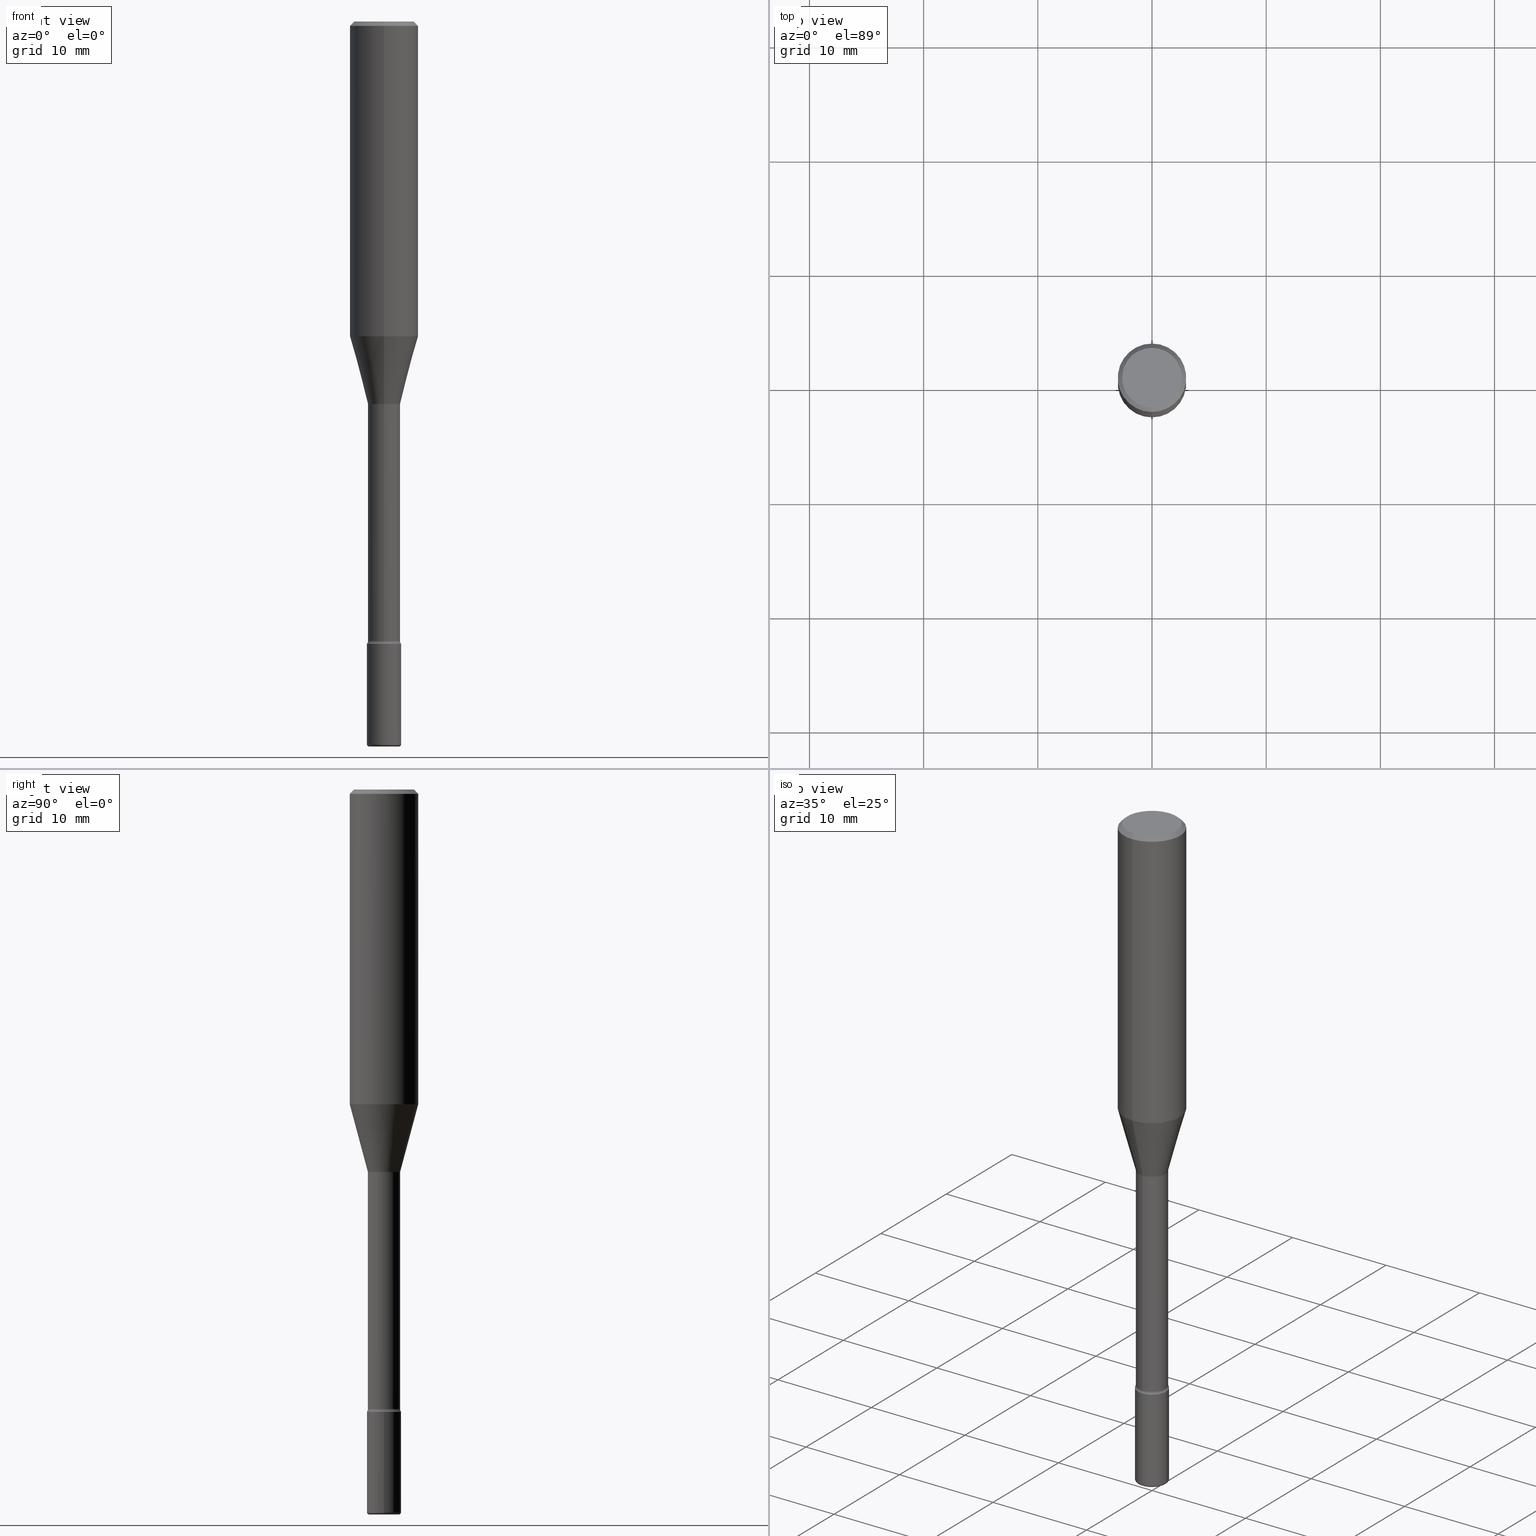
[diagram: canonical four-view strip — front | top / right | iso, engineering-drawing reading convention]
A machine part, canonical four-view strip (front | top / right | iso — engineering-drawing reading convention). The complete STEP part file that produces these views, byte-faithful:
ISO-10303-21;
HEADER;
FILE_DESCRIPTION (( 'STEP AP203' ),
    '1' );
FILE_NAME ('05367.STEP',
    '2024-03-06T20:02:08',
    ( '' ),
    ( '' ),
    'SwSTEP 2.0',
    'SolidWorks 2023',
    '' );
FILE_SCHEMA (( 'CONFIG_CONTROL_DESIGN' ));
ENDSEC;

DATA;
#1 = VECTOR ( 'NONE', #241, 39.37007874015748143 ) ;
#2 = VECTOR ( 'NONE', #45, 39.37007874015748143 ) ;
#3 = APPROVAL ( #486, 'UNSPECIFIED' ) ;
#4 = LINE ( 'NONE', #530, #2 ) ;
#5 = ORIENTED_EDGE ( 'NONE', *, *, #226, .F. ) ;
#6 = CARTESIAN_POINT ( 'NONE',  ( 3.220460959417665931E-29, -4.598545625197397204E-15, -1.316992501787273007 ) ) ;
#7 = VERTEX_POINT ( 'NONE', #312 ) ;
#8 = DIRECTION ( 'NONE',  ( -2.445314574720221452E-29, 3.491702207079214016E-15, 1.000000000000000000 ) ) ;
#9 = DATE_TIME_ROLE ( 'classification_date' ) ;
#10 = CARTESIAN_POINT ( 'NONE',  ( 0.05905000000000005383, -9.113464590648378529E-15, -2.492100000000000648 ) ) ;
#11 = AXIS2_PLACEMENT_3D ( 'NONE', #288, #198, #367 ) ;
#12 = COORDINATED_UNIVERSAL_TIME_OFFSET ( 5, 0, .BEHIND. ) ;
#13 = EDGE_CURVE ( 'NONE', #376, #202, #94, .T. ) ;
#14 = FACE_OUTER_BOUND ( 'NONE', #568, .T. ) ;
#15 = LINE ( 'NONE', #239, #95 ) ;
#16 = CARTESIAN_POINT ( 'NONE',  ( -0.05114999999999999408, -8.337678035189711370E-15, -2.492099999999999760 ) ) ;
#17 = COORDINATED_UNIVERSAL_TIME_OFFSET ( 5, 0, .BEHIND. ) ;
#18 = DIRECTION ( 'NONE',  ( -1.000000000000000000, 6.982962677686265922E-15, -4.883557194083112340E-29 ) ) ;
#19 = CARTESIAN_POINT ( 'NONE',  ( 4.123439461174264426E-16, 0.05904999999999250432, -2.145700000000000163 ) ) ;
#20 = PERSON_AND_ORGANIZATION ( #254, #103 ) ;
#21 = EDGE_CURVE ( 'NONE', #265, #319, #160, .T. ) ;
#22 = CARTESIAN_POINT ( 'NONE',  ( -7.587710785535310407E-16, -0.1031000000000000111, 3.312380692850428747E-16 ) ) ;
#23 = CONICAL_SURFACE ( 'NONE', #357, 0.1180999999999999966, 0.7853981633974480570 ) ;
#24 = CARTESIAN_POINT ( 'NONE',  ( -0.05904999999999999832, -7.676820591177032402E-15, -2.145700000000000163 ) ) ;
#25 = CARTESIAN_POINT ( 'NONE',  ( -8.246878922347212441E-16, -0.1181000000000037714, -1.085273619446188276 ) ) ;
#26 = EDGE_CURVE ( 'NONE', #72, #250, #141, .T. ) ;
#27 = ADVANCED_FACE ( 'NONE', ( #479 ), #405, .T. ) ;
#28 = VERTEX_POINT ( 'NONE', #482 ) ;
#29 = AXIS2_PLACEMENT_3D ( 'NONE', #56, #407, #408 ) ;
#30 = CIRCLE ( 'NONE', #351, 0.007900000000000104855 ) ;
#31 = CYLINDRICAL_SURFACE ( 'NONE', #455, 0.05904999999999999832 ) ;
#32 = EDGE_LOOP ( 'NONE', ( #295, #125, #391, #338 ) ) ;
#33 = DIRECTION ( 'NONE',  ( 1.000000000000000000, -7.105427357601001070E-15, 4.926318213397865757E-29 ) ) ;
#34 = ORIENTED_EDGE ( 'NONE', *, *, #26, .F. ) ;
#35 = DIRECTION ( 'NONE',  ( -6.982962677686266711E-15, -1.000000000000000000, 3.491481338843145583E-15 ) ) ;
#36 = APPROVAL ( #279, 'UNSPECIFIED' ) ;
#37 = ORIENTED_EDGE ( 'NONE', *, *, #283, .T. ) ;
#38 =( CONVERSION_BASED_UNIT ( 'INCH', #427 ) LENGTH_UNIT ( ) NAMED_UNIT ( #350 ) );
#39 = DIRECTION ( 'NONE',  ( -2.445314574720221452E-29, 3.491702207079214016E-15, 1.000000000000000000 ) ) ;
#40 = CIRCLE ( 'NONE', #333, 0.05550000000000001460 ) ;
#41 = ORIENTED_EDGE ( 'NONE', *, *, #521, .F. ) ;
#42 = ORIENTED_EDGE ( 'NONE', *, *, #272, .T. ) ;
#43 = ORIENTED_EDGE ( 'NONE', *, *, #371, .T. ) ;
#44 = EDGE_CURVE ( 'NONE', #265, #225, #230, .T. ) ;
#45 = DIRECTION ( 'NONE',  ( -2.445314574720221172E-29, 3.491702207079214016E-15, 1.000000000000000000 ) ) ;
#46 = CARTESIAN_POINT ( 'NONE',  ( 3.667971862080338817E-31, -5.237553310618831452E-17, -0.01500000000000002720 ) ) ;
#47 = PRODUCT_DEFINITION_FORMATION_WITH_SPECIFIED_SOURCE ( 'ANY', '', #193, .NOT_KNOWN. ) ;
#48 = CARTESIAN_POINT ( 'NONE',  ( 0.05114999999999999408, -9.085881888071516406E-15, -2.500000000000000000 ) ) ;
#49 = AXIS2_PLACEMENT_3D ( 'NONE', #507, #119, #291 ) ;
#50 = ORIENTED_EDGE ( 'NONE', *, *, #118, .F. ) ;
#51 = DIRECTION ( 'NONE',  ( 1.000000000000000000, -6.982962677686258822E-15, 0.000000000000000000 ) ) ;
#52 = ORIENTED_EDGE ( 'NONE', *, *, #490, .F. ) ;
#53 = PRODUCT_RELATED_PRODUCT_CATEGORY ( 'detail', '', ( #193 ) ) ;
#54 = VECTOR ( 'NONE', #366, 39.37007874015748143 ) ;
#55 = CIRCLE ( 'NONE', #137, 0.1031000000000000111 ) ;
#56 = CARTESIAN_POINT ( 'NONE',  ( 3.667971862080338817E-31, -5.237553310618831452E-17, -0.01500000000000002720 ) ) ;
#57 = PLANE ( 'NONE',  #425 ) ;
#58 = CARTESIAN_POINT ( 'NONE',  ( 5.247242417431447608E-29, -7.491671508755737816E-15, -2.145700000000000163 ) ) ;
#59 = MECHANICAL_CONTEXT ( 'NONE', #270, 'mechanical' ) ;
#60 = EDGE_CURVE ( 'NONE', #28, #428, #553, .T. ) ;
#61 = DIRECTION ( 'NONE',  ( -2.445314574720221452E-29, 3.491702207079214016E-15, 1.000000000000000000 ) ) ;
#62 = CARTESIAN_POINT ( 'NONE',  ( 3.979828918379874177E-16, 0.05601111260565939248, -1.316992501787273229 ) ) ;
#63 = CARTESIAN_POINT ( 'NONE',  ( 3.667971862080338817E-31, -5.237553310618831452E-17, -0.01500000000000002720 ) ) ;
#64 = AXIS2_PLACEMENT_3D ( 'NONE', #387, #93, #268 ) ;
#65 = CARTESIAN_POINT ( 'NONE',  ( 5.009326287109235352E-16, 0.07049999999999263800, -2.136009927760847305 ) ) ;
#66 = DIRECTION ( 'NONE',  ( -6.982962677686265922E-15, -1.000000000000000000, 3.491702207079214016E-15 ) ) ;
#67 = LINE ( 'NONE', #456, #1 ) ;
#68 = CARTESIAN_POINT ( 'NONE',  ( 6.094352811893979937E-29, -8.701120644531004397E-15, -2.492100000000000648 ) ) ;
#69 = DIRECTION ( 'NONE',  ( -2.445314574720221452E-29, 3.491702207079214016E-15, 1.000000000000000000 ) ) ;
#70 = ORIENTED_EDGE ( 'NONE', *, *, #436, .T. ) ;
#71 = EDGE_CURVE ( 'NONE', #433, #266, #439, .T. ) ;
#72 = VERTEX_POINT ( 'NONE', #227 ) ;
#73 = ORIENTED_EDGE ( 'NONE', *, *, #150, .T. ) ;
#74 = AXIS2_PLACEMENT_3D ( 'NONE', #65, #203, #158 ) ;
#75 = AXIS2_PLACEMENT_3D ( 'NONE', #563, #560, #337 ) ;
#76 = DIRECTION ( 'NONE',  ( 1.000000000000000000, -6.982962677686266711E-15, 4.876176775795936353E-29 ) ) ;
#77 = EDGE_LOOP ( 'NONE', ( #473, #384, #168, #252 ) ) ;
#78 = CARTESIAN_POINT ( 'NONE',  ( 3.667971862080338817E-31, -5.237553310618831452E-17, -0.01500000000000002720 ) ) ;
#79 = EDGE_CURVE ( 'NONE', #220, #422, #218, .T. ) ;
#80 = EDGE_CURVE ( 'NONE', #472, #7, #316, .T. ) ;
#81 = ORIENTED_EDGE ( 'NONE', *, *, #71, .T. ) ;
#82 = ORIENTED_EDGE ( 'NONE', *, *, #26, .T. ) ;
#83 = DIRECTION ( 'NONE',  ( 6.982962677686265922E-15, 1.000000000000000000, -3.487819265831411744E-15 ) ) ;
#84 = CLOSED_SHELL ( 'NONE', ( #400, #358, #159, #127, #483, #210 ) ) ;
#85 = VECTOR ( 'NONE', #256, 39.37007874015748143 ) ;
#86 = CARTESIAN_POINT ( 'NONE',  ( 4.069633519066500838E-16, 0.05549999999999261774, -2.136009927760847749 ) ) ;
#87 = ADVANCED_FACE ( 'NONE', ( #276 ), #487, .T. ) ;
#88 = DIRECTION ( 'NONE',  ( -1.000000000000000000, 6.982962677686265922E-15, -4.883557194083112340E-29 ) ) ;
#89 = MANIFOLD_SOLID_BREP ( 'Body-Move/Copy2[1]', #84 ) ;
#90 = DIRECTION ( 'NONE',  ( -6.982962677686265922E-15, -1.000000000000000000, 3.469747663417777397E-15 ) ) ;
#91 = DIRECTION ( 'NONE',  ( -2.445314574720221452E-29, 3.491702207079214016E-15, 1.000000000000000000 ) ) ;
#92 = DIRECTION ( 'NONE',  ( -6.982962677686270655E-15, -1.000000000000000000, 0.000000000000000000 ) ) ;
#93 = DIRECTION ( 'NONE',  ( -2.445468806185136597E-29, 3.491481338843145583E-15, 1.000000000000000000 ) ) ;
#94 = CIRCLE ( 'NONE', #395, 0.1180999999999999966 ) ;
#95 = VECTOR ( 'NONE', #412, 39.37007874015748143 ) ;
#96 = APPROVAL_DATE_TIME ( #156, #3 ) ;
#97 = APPLICATION_PROTOCOL_DEFINITION ( 'international standard', 'config_control_design', 1994, #286 ) ;
#98 = ADVANCED_FACE ( 'NONE', ( #326 ), #23, .T. ) ;
#99 = PERSON_AND_ORGANIZATION ( #254, #103 ) ;
#100 = CARTESIAN_POINT ( 'NONE',  ( 5.223216208100687058E-29, -7.458310579105662270E-15, -2.136009927760847305 ) ) ;
#101 = FACE_OUTER_BOUND ( 'NONE', #559, .T. ) ;
#102 = LOCAL_TIME ( 15, 2, 8.000000000000000000, #364 ) ;
#103 = ORGANIZATION ( 'UNSPECIFIED', 'UNSPECIFIED', '' ) ;
#104 = AXIS2_PLACEMENT_3D ( 'NONE', #100, #540, #233 ) ;
#105 = AXIS2_PLACEMENT_3D ( 'NONE', #375, #33, #471 ) ;
#106 = CC_DESIGN_PERSON_AND_ORGANIZATION_ASSIGNMENT ( #488, #323, ( #432 ) ) ;
#107 = CARTESIAN_POINT ( 'NONE',  ( -8.102248135368174406E-16, -0.1181000000000000522, -0.01499999999999961607 ) ) ;
#108 = PERSON_AND_ORGANIZATION ( #254, #103 ) ;
#109 = DATE_AND_TIME ( #548, #102 ) ;
#110 = CARTESIAN_POINT ( 'NONE',  ( -8.246878922347479668E-16, -0.1180999999999999966, 8.904434295473012272E-16 ) ) ;
#111 = DIRECTION ( 'NONE',  ( -6.982962677686265922E-15, -1.000000000000000000, 4.877332133888037765E-15 ) ) ;
#112 = DIRECTION ( 'NONE',  ( -6.982962677686265922E-15, -1.000000000000000000, 4.626330217890369336E-15 ) ) ;
#113 = PLANE ( 'NONE',  #11 ) ;
#114 = DIRECTION ( 'NONE',  ( -2.445468806185136597E-29, 3.491481338843145583E-15, 1.000000000000000000 ) ) ;
#115 = CIRCLE ( 'NONE', #248, 0.007900000000000104855 ) ;
#116 = CARTESIAN_POINT ( 'NONE',  ( -1.169113584055446105E-44, 1.669184350826100908E-30, 4.780733988912460139E-16 ) ) ;
#117 = DIRECTION ( 'NONE',  ( -2.445314574720221452E-29, 3.491702207079214016E-15, 1.000000000000000000 ) ) ;
#118 = EDGE_CURVE ( 'NONE', #265, #202, #67, .T. ) ;
#119 = DIRECTION ( 'NONE',  ( -2.445314574720221452E-29, 3.491702207079214016E-15, 1.000000000000000000 ) ) ;
#120 = ORIENTED_EDGE ( 'NONE', *, *, #292, .F. ) ;
#121 = ORIENTED_EDGE ( 'NONE', *, *, #509, .T. ) ;
#122 = CARTESIAN_POINT ( 'NONE',  ( 0.000000000000000000, 0.000000000000000000, 0.000000000000000000 ) ) ;
#123 = DIRECTION ( 'NONE',  ( -2.445468806185136597E-29, 3.491481338843145583E-15, 1.000000000000000000 ) ) ;
#124 = LOCAL_TIME ( 15, 2, 8.000000000000000000, #17 ) ;
#125 = ORIENTED_EDGE ( 'NONE', *, *, #238, .T. ) ;
#126 = AXIS2_PLACEMENT_3D ( 'NONE', #196, #117, #112 ) ;
#127 = ADVANCED_FACE ( 'NONE', ( #409 ), #113, .T. ) ;
#128 = CARTESIAN_POINT ( 'NONE',  ( 5.247242417431447608E-29, -7.491671508755737816E-15, -2.145700000000000163 ) ) ;
#129 = ORIENTED_EDGE ( 'NONE', *, *, #231, .T. ) ;
#130 = ORIENTED_EDGE ( 'NONE', *, *, #420, .T. ) ;
#131 = ORIENTED_EDGE ( 'NONE', *, *, #44, .F. ) ;
#132 = EDGE_LOOP ( 'NONE', ( #460, #129, #121, #263 ) ) ;
#133 = CARTESIAN_POINT ( 'NONE',  ( 8.391509709326781971E-16, 0.1180999999999999966, 6.570336823519088696E-17 ) ) ;
#134 = EDGE_CURVE ( 'NONE', #422, #220, #536, .T. ) ;
#135 = DIRECTION ( 'NONE',  ( 1.000000000000000000, -6.982962677686266711E-15, 4.876176775795936353E-29 ) ) ;
#136 = DIRECTION ( 'NONE',  ( -6.982962677686265922E-15, -1.000000000000000000, 4.877332133888037765E-15 ) ) ;
#137 = AXIS2_PLACEMENT_3D ( 'NONE', #311, #177, #429 ) ;
#138 = CARTESIAN_POINT ( 'NONE',  ( -3.875544286115555499E-16, -0.05550000000000462202, -1.320874787463810707 ) ) ;
#139 = ORIENTED_EDGE ( 'NONE', *, *, #466, .T. ) ;
#140 = FACE_OUTER_BOUND ( 'NONE', #174, .T. ) ;
#141 = LINE ( 'NONE', #304, #394 ) ;
#142 = CARTESIAN_POINT ( 'NONE',  ( 5.247242417431447608E-29, -7.491671508755737816E-15, -2.145700000000000163 ) ) ;
#143 = DIRECTION ( 'NONE',  ( -6.982962677686265922E-15, -1.000000000000000000, 4.922248637232899302E-15 ) ) ;
#144 = APPROVAL_PERSON_ORGANIZATION ( #328, #36, #537 ) ;
#145 = ADVANCED_FACE ( 'NONE', ( #280 ), #566, .F. ) ;
#146 = DIRECTION ( 'NONE',  ( -2.445314574720221172E-29, 3.491702207079214016E-15, 1.000000000000000000 ) ) ;
#147 = TOROIDAL_SURFACE ( 'NONE', #297, 0.07050000000000010425, 0.01500000000000002373 ) ;
#148 = EDGE_LOOP ( 'NONE', ( #130, #73, #480, #342 ) ) ;
#149 = CARTESIAN_POINT ( 'NONE',  ( -8.246878922347475723E-16, -0.1181000000000000522, -0.01499999999999961607 ) ) ;
#150 = EDGE_CURVE ( 'NONE', #28, #72, #115, .T. ) ;
#151 = DIRECTION ( 'NONE',  ( 2.445314574720221172E-29, -3.491702207079214016E-15, -1.000000000000000000 ) ) ;
#152 = DIRECTION ( 'NONE',  ( -2.438088387897960049E-29, 3.491481338843145188E-15, 1.000000000000000000 ) ) ;
#153 = PERSON_AND_ORGANIZATION_ROLE ( 'design_supplier' ) ;
#154 = CIRCLE ( 'NONE', #434, 0.05550000000000001460 ) ;
#155 = AXIS2_PLACEMENT_3D ( 'NONE', #567, #416, #513 ) ;
#156 = DATE_AND_TIME ( #269, #216 ) ;
#157 = CARTESIAN_POINT ( 'NONE',  ( 6.094352811893978816E-29, -8.701120644531002820E-15, -2.492099999999999760 ) ) ;
#158 = DIRECTION ( 'NONE',  ( 7.105427357601001859E-15, 1.000000000000000000, 0.000000000000000000 ) ) ;
#159 = ADVANCED_FACE ( 'NONE', ( #458 ), #441, .T. ) ;
#160 = CIRCLE ( 'NONE', #388, 0.05601111260566399297 ) ;
#161 = FACE_OUTER_BOUND ( 'NONE', #294, .T. ) ;
#162 = CIRCLE ( 'NONE', #341, 0.01500000000000001853 ) ;
#163 = EDGE_LOOP ( 'NONE', ( #347, #430, #41, #50 ) ) ;
#164 = DIRECTION ( 'NONE',  ( -6.982962677686265922E-15, -1.000000000000000000, 3.491702207079214411E-15 ) ) ;
#165 = ORIENTED_EDGE ( 'NONE', *, *, #329, .F. ) ;
#166 = DIRECTION ( 'NONE',  ( -2.445468806185136597E-29, 3.491481338843145583E-15, 1.000000000000000000 ) ) ;
#167 = ADVANCED_FACE ( 'NONE', ( #290 ), #543, .T. ) ;
#168 = ORIENTED_EDGE ( 'NONE', *, *, #570, .T. ) ;
#169 = ORIENTED_EDGE ( 'NONE', *, *, #13, .T. ) ;
#170 = ORIENTED_EDGE ( 'NONE', *, *, #558, .T. ) ;
#171 = TOROIDAL_SURFACE ( 'NONE', #484, 0.07050000000000000711, 0.01500000000000001853 ) ;
#172 = VERTEX_POINT ( 'NONE', #235 ) ;
#173 = ORIENTED_EDGE ( 'NONE', *, *, #226, .T. ) ;
#174 = EDGE_LOOP ( 'NONE', ( #465, #423, #211, #42 ) ) ;
#175 = UNCERTAINTY_MEASURE_WITH_UNIT (LENGTH_MEASURE( 1.000000000000000082E-05 ), #38, 'distance_accuracy_value', 'NONE');
#176 = ORIENTED_EDGE ( 'NONE', *, *, #264, .T. ) ;
#177 = DIRECTION ( 'NONE',  ( -2.445314574720221452E-29, 3.491702207079214016E-15, 1.000000000000000000 ) ) ;
#178 = CARTESIAN_POINT ( 'NONE',  ( 2.653835399191132044E-29, -3.789452292305104081E-15, -1.085273619446188720 ) ) ;
#179 = ADVANCED_FACE ( 'NONE', ( #449 ), #402, .F. ) ;
#180 = CIRCLE ( 'NONE', #74, 0.01500000000000001853 ) ;
#181 = CIRCLE ( 'NONE', #105, 0.01500000000000001159 ) ;
#182 = ORIENTED_EDGE ( 'NONE', *, *, #509, .F. ) ;
#183 = ADVANCED_FACE ( 'NONE', ( #327 ), #502, .T. ) ;
#184 = DIRECTION ( 'NONE',  ( -2.445468806185136597E-29, 3.491481338843145583E-15, 1.000000000000000000 ) ) ;
#185 = ORIENTED_EDGE ( 'NONE', *, *, #150, .F. ) ;
#186 = LOCAL_TIME ( 15, 2, 8.000000000000000000, #495 ) ;
#187 = TOROIDAL_SURFACE ( 'NONE', #49, 0.07050000000000000711, 0.01500000000000001853 ) ;
#188 = DIRECTION ( 'NONE',  ( -2.445314574720221452E-29, 3.491702207079214016E-15, 1.000000000000000000 ) ) ;
#189 = APPROVAL ( #368, 'UNSPECIFIED' ) ;
#190 = DIRECTION ( 'NONE',  ( 1.000000000000000000, -6.982962677686265922E-15, 4.876176775795935793E-29 ) ) ;
#191 = APPROVAL_ROLE ( '' ) ;
#192 = DIRECTION ( 'NONE',  ( -2.445314574720221172E-29, 3.491702207079214016E-15, 1.000000000000000000 ) ) ;
#193 = PRODUCT ( '05367', '05367', '', ( #59 ) ) ;
#194 = DIRECTION ( 'NONE',  ( 6.982962677686265922E-15, 1.000000000000000000, -3.491702207079214016E-15 ) ) ;
#195 = SECURITY_CLASSIFICATION_LEVEL ( 'unclassified' ) ;
#196 = CARTESIAN_POINT ( 'NONE',  ( 5.246911482977179404E-29, -7.492145425729869203E-15, -2.145700000000000163 ) ) ;
#197 = VECTOR ( 'NONE', #401, 39.37007874015748143 ) ;
#198 = DIRECTION ( 'NONE',  ( 2.438088387897960049E-29, -3.491481338843145188E-15, -1.000000000000000000 ) ) ;
#199 = CALENDAR_DATE ( 2024, 6, 3 ) ;
#200 = CARTESIAN_POINT ( 'NONE',  ( -3.911235088610021883E-16, -0.05601111260566859346, -1.316992501787272785 ) ) ;
#201 = EDGE_CURVE ( 'NONE', #472, #72, #306, .T. ) ;
#202 = VERTEX_POINT ( 'NONE', #25 ) ;
#203 = DIRECTION ( 'NONE',  ( 1.000000000000000000, -7.105427357601001070E-15, 4.926318213397865757E-29 ) ) ;
#204 = EDGE_LOOP ( 'NONE', ( #464, #562 ) ) ;
#205 = AXIS2_PLACEMENT_3D ( 'NONE', #475, #346, #66 ) ;
#206 = ORIENTED_EDGE ( 'NONE', *, *, #60, .T. ) ;
#207 = CYLINDRICAL_SURFACE ( 'NONE', #477, 0.05904999999999999832 ) ;
#208 = DIRECTION ( 'NONE',  ( 1.000000000000000000, -6.982962677686153903E-15, 0.000000000000000000 ) ) ;
#209 = CARTESIAN_POINT ( 'NONE',  ( 0.000000000000000000, 0.000000000000000000, 0.000000000000000000 ) ) ;
#210 = ADVANCED_FACE ( 'NONE', ( #461 ), #207, .T. ) ;
#211 = ORIENTED_EDGE ( 'NONE', *, *, #44, .T. ) ;
#212 = DIRECTION ( 'NONE',  ( -2.445468806185136597E-29, 3.491481338843145583E-15, 1.000000000000000000 ) ) ;
#213 = DIRECTION ( 'NONE',  ( 1.000000000000000000, -6.982962677686276966E-15, 4.883557194083116264E-29 ) ) ;
#214 = EDGE_LOOP ( 'NONE', ( #508, #379 ) ) ;
#215 = FACE_OUTER_BOUND ( 'NONE', #293, .T. ) ;
#216 = LOCAL_TIME ( 15, 2, 8.000000000000000000, #12 ) ;
#217 = ORIENTED_EDGE ( 'NONE', *, *, #457, .F. ) ;
#218 = CIRCLE ( 'NONE', #494, 0.05550000000000008399 ) ;
#219 = CARTESIAN_POINT ( 'NONE',  ( 6.113672015462842613E-29, -8.728703347107864943E-15, -2.500000000000000000 ) ) ;
#220 = VERTEX_POINT ( 'NONE', #86 ) ;
#221 = ORIENTED_EDGE ( 'NONE', *, *, #79, .F. ) ;
#222 = APPROVAL_PERSON_ORGANIZATION ( #108, #189, #191 ) ;
#223 = AXIS2_PLACEMENT_3D ( 'NONE', #321, #459, #492 ) ;
#224 = AXIS2_PLACEMENT_3D ( 'NONE', #78, #377, #253 ) ;
#225 = VERTEX_POINT ( 'NONE', #138 ) ;
#226 = EDGE_CURVE ( 'NONE', #72, #472, #440, .T. ) ;
#227 = CARTESIAN_POINT ( 'NONE',  ( -0.05905000000000005383, -8.281545159064664904E-15, -2.492100000000000648 ) ) ;
#228 = DATE_AND_TIME ( #277, #186 ) ;
#229 = EDGE_CURVE ( 'NONE', #319, #376, #505, .T. ) ;
#230 = CIRCLE ( 'NONE', #247, 0.01500000000000001159 ) ;
#231 = EDGE_CURVE ( 'NONE', #336, #314, #404, .T. ) ;
#232 = AXIS2_PLACEMENT_3D ( 'NONE', #68, #242, #410 ) ;
#233 = DIRECTION ( 'NONE',  ( -6.982962677686265922E-15, -1.000000000000000000, 4.922248637232899302E-15 ) ) ;
#234 = PERSON_AND_ORGANIZATION ( #254, #103 ) ;
#235 = CARTESIAN_POINT ( 'NONE',  ( 8.391509709327049197E-16, 0.1180999999999999411, -0.01500000000000044006 ) ) ;
#236 =( GEOMETRIC_REPRESENTATION_CONTEXT ( 3 ) GLOBAL_UNCERTAINTY_ASSIGNED_CONTEXT ( ( #175 ) ) GLOBAL_UNIT_ASSIGNED_CONTEXT ( ( #38, #481, #260 ) ) REPRESENTATION_CONTEXT ( 'NONE', 'WORKASPACE' ) );
#237 = CIRCLE ( 'NONE', #396, 0.05904999999999999832 ) ;
#238 = EDGE_CURVE ( 'NONE', #220, #353, #499, .T. ) ;
#239 = CARTESIAN_POINT ( 'NONE',  ( 8.246878922347483612E-16, 0.1180999999999999411, -0.01500000000000044006 ) ) ;
#240 = DIRECTION ( 'NONE',  ( -2.445314574720221172E-29, 3.491702207079214016E-15, 1.000000000000000000 ) ) ;
#241 = DIRECTION ( 'NONE',  ( -1.807323732225328167E-15, -0.2588190451025179084, 0.9659258262890690894 ) ) ;
#242 = DIRECTION ( 'NONE',  ( -2.445468806185136597E-29, 3.491481338843145583E-15, 1.000000000000000000 ) ) ;
#243 = CARTESIAN_POINT ( 'NONE',  ( 3.943512183469081661E-16, 0.05549999999999540023, -1.320874787463811373 ) ) ;
#244 = ORIENTED_EDGE ( 'NONE', *, *, #490, .T. ) ;
#245 = CC_DESIGN_PERSON_AND_ORGANIZATION_ASSIGNMENT ( #20, #281, ( #47 ) ) ;
#246 = CYLINDRICAL_SURFACE ( 'NONE', #75, 0.1180999999999999966 ) ;
#247 = AXIS2_PLACEMENT_3D ( 'NONE', #345, #88, #92 ) ;
#248 = AXIS2_PLACEMENT_3D ( 'NONE', #16, #275, #547 ) ;
#249 = CONICAL_SURFACE ( 'NONE', #373, 0.05601111260566399297, 0.2617993877991499629 ) ;
#250 = VERTEX_POINT ( 'NONE', #24 ) ;
#251 = DIRECTION ( 'NONE',  ( -2.445468806185136597E-29, 3.491481338843145583E-15, 1.000000000000000000 ) ) ;
#252 = ORIENTED_EDGE ( 'NONE', *, *, #436, .F. ) ;
#253 = DIRECTION ( 'NONE',  ( -6.982962677686265922E-15, -1.000000000000000000, 3.487819265831411744E-15 ) ) ;
#254 = PERSON ( 'UNSPECIFIED', 'UNSPECIFIED', 'UNSPECIFIED', ('UNSPECIFIED'), ('UNSPECIFIED'), ('UNSPECIFIED') ) ;
#255 = ORIENTED_EDGE ( 'NONE', *, *, #229, .F. ) ;
#256 = DIRECTION ( 'NONE',  ( -2.445468806185136877E-29, 3.491481338843145188E-15, 1.000000000000000000 ) ) ;
#257 = EDGE_CURVE ( 'NONE', #266, #433, #526, .T. ) ;
#258 = ORIENTED_EDGE ( 'NONE', *, *, #521, .T. ) ;
#259 = CIRCLE ( 'NONE', #64, 0.05114999999999999408 ) ;
#260 =( NAMED_UNIT ( * ) SI_UNIT ( $, .STERADIAN. ) SOLID_ANGLE_UNIT ( ) );
#261 = ORIENTED_EDGE ( 'NONE', *, *, #496, .T. ) ;
#262 = DIRECTION ( 'NONE',  ( -6.982962677686265922E-15, -1.000000000000000000, 3.491702207079214016E-15 ) ) ;
#263 = ORIENTED_EDGE ( 'NONE', *, *, #378, .F. ) ;
#264 = EDGE_CURVE ( 'NONE', #172, #314, #381, .T. ) ;
#265 = VERTEX_POINT ( 'NONE', #200 ) ;
#266 = VERTEX_POINT ( 'NONE', #551 ) ;
#267 = AXIS2_PLACEMENT_3D ( 'NONE', #19, #240, #285 ) ;
#268 = DIRECTION ( 'NONE',  ( 1.000000000000000000, -6.982962677686258822E-15, 0.000000000000000000 ) ) ;
#269 = CALENDAR_DATE ( 2024, 6, 3 ) ;
#270 = APPLICATION_CONTEXT ( 'configuration controlled 3d designs of mechanical parts and assemblies' ) ;
#271 = DIRECTION ( 'NONE',  ( 6.982962677686265922E-15, 1.000000000000000000, -3.487819265831411744E-15 ) ) ;
#272 = EDGE_CURVE ( 'NONE', #225, #353, #154, .T. ) ;
#273 = ADVANCED_BREP_SHAPE_REPRESENTATION ( '05367', ( #89, #274, #565 ), #236 ) ;
#274 = MANIFOLD_SOLID_BREP ( 'Body-Move/Copy2[2]', #340 ) ;
#275 = DIRECTION ( 'NONE',  ( 7.105427357601001859E-15, 1.000000000000000000, -3.491481338843145583E-15 ) ) ;
#276 = FACE_OUTER_BOUND ( 'NONE', #77, .T. ) ;
#277 = CALENDAR_DATE ( 2024, 6, 3 ) ;
#278 = TOROIDAL_SURFACE ( 'NONE', #325, 0.05114999999999999408, 0.007900000000000104855 ) ;
#279 = APPROVAL_STATUS ( 'not_yet_approved' ) ;
#280 = FACE_OUTER_BOUND ( 'NONE', #514, .T. ) ;
#281 = PERSON_AND_ORGANIZATION_ROLE ( 'creator' ) ;
#282 = DIRECTION ( 'NONE',  ( -2.445468806185136597E-29, 3.491481338843145583E-15, 1.000000000000000000 ) ) ;
#283 = EDGE_CURVE ( 'NONE', #220, #433, #180, .T. ) ;
#284 = CARTESIAN_POINT ( 'NONE',  ( 8.391509709327049197E-16, 0.1180999999999962358, -1.085273619446189164 ) ) ;
#285 = DIRECTION ( 'NONE',  ( -6.982962677686265922E-15, -1.000000000000000000, 3.491702207079214016E-15 ) ) ;
#286 = APPLICATION_CONTEXT ( 'configuration controlled 3d designs of mechanical parts and assemblies' ) ;
#287 = CC_DESIGN_SECURITY_CLASSIFICATION ( #432, ( #47 ) ) ;
#288 = CARTESIAN_POINT ( 'NONE',  ( 3.571785409637135859E-16, 0.05114999999999127189, -2.500000000000000000 ) ) ;
#289 = AXIS2_PLACEMENT_3D ( 'NONE', #446, #544, #451 ) ;
#290 = FACE_OUTER_BOUND ( 'NONE', #382, .T. ) ;
#291 = DIRECTION ( 'NONE',  ( -6.982962677686265922E-15, -1.000000000000000000, 3.491702207079214411E-15 ) ) ;
#292 = EDGE_CURVE ( 'NONE', #319, #265, #467, .T. ) ;
#293 = EDGE_LOOP ( 'NONE', ( #258, #139, #182, #301 ) ) ;
#294 = EDGE_LOOP ( 'NONE', ( #120, #374, #70, #131 ) ) ;
#295 = ORIENTED_EDGE ( 'NONE', *, *, #134, .T. ) ;
#296 = FACE_OUTER_BOUND ( 'NONE', #32, .T. ) ;
#297 = AXIS2_PLACEMENT_3D ( 'NONE', #399, #438, #397 ) ;
#298 = ORIENTED_EDGE ( 'NONE', *, *, #134, .F. ) ;
#299 = ORIENTED_EDGE ( 'NONE', *, *, #292, .T. ) ;
#300 = CARTESIAN_POINT ( 'NONE',  ( 0.05114999999999999408, -9.058299185494654283E-15, -2.492099999999999760 ) ) ;
#301 = ORIENTED_EDGE ( 'NONE', *, *, #371, .F. ) ;
#302 = CC_DESIGN_PERSON_AND_ORGANIZATION_ASSIGNMENT ( #99, #153, ( #47 ) ) ;
#303 = ORIENTED_EDGE ( 'NONE', *, *, #264, .F. ) ;
#304 = CARTESIAN_POINT ( 'NONE',  ( -0.05904999999999999832, 4.195754854663391478E-16, -2.904631170795521892E-30 ) ) ;
#305 = AXIS2_PLACEMENT_3D ( 'NONE', #219, #383, #51 ) ;
#306 = CIRCLE ( 'NONE', #232, 0.05904999999999999832 ) ;
#307 = AXIS2_PLACEMENT_3D ( 'NONE', #313, #352, #262 ) ;
#308 = DIRECTION ( 'NONE',  ( -2.445314574720221452E-29, 3.491702207079214016E-15, 1.000000000000000000 ) ) ;
#309 = CARTESIAN_POINT ( 'NONE',  ( 6.094352811893979937E-29, -8.701120644531004397E-15, -2.492100000000000648 ) ) ;
#310 = ADVANCED_FACE ( 'NONE', ( #101 ), #147, .F. ) ;
#311 = CARTESIAN_POINT ( 'NONE',  ( 7.024477919222300476E-46, -1.005144752683258765E-31, -2.875642826482414108E-17 ) ) ;
#312 = CARTESIAN_POINT ( 'NONE',  ( 0.05904999999999999832, -7.904015454873111947E-15, -2.145700000000000163 ) ) ;
#313 = CARTESIAN_POINT ( 'NONE',  ( -1.169113584055446105E-44, 1.669184350826100908E-30, 4.780733988912460139E-16 ) ) ;
#314 = VERTEX_POINT ( 'NONE', #149 ) ;
#315 =( LENGTH_UNIT ( ) NAMED_UNIT ( * ) SI_UNIT ( $, .METRE. ) );
#316 = LINE ( 'NONE', #485, #85 ) ;
#317 = APPROVAL_DATE_TIME ( #109, #189 ) ;
#318 = AXIS2_PLACEMENT_3D ( 'NONE', #498, #322, #111 ) ;
#319 = VERTEX_POINT ( 'NONE', #359 ) ;
#320 = PERSON_AND_ORGANIZATION_ROLE ( 'creator' ) ;
#321 = CARTESIAN_POINT ( 'NONE',  ( 3.220460959417665931E-29, -4.598545625197397204E-15, -1.316992501787273007 ) ) ;
#322 = DIRECTION ( 'NONE',  ( -2.445314574720221452E-29, 3.491702207079214016E-15, 1.000000000000000000 ) ) ;
#323 = PERSON_AND_ORGANIZATION_ROLE ( 'classification_officer' ) ;
#324 = VECTOR ( 'NONE', #192, 39.37007874015748143 ) ;
#325 = AXIS2_PLACEMENT_3D ( 'NONE', #419, #251, #213 ) ;
#326 = FACE_OUTER_BOUND ( 'NONE', #132, .T. ) ;
#327 = FACE_OUTER_BOUND ( 'NONE', #564, .T. ) ;
#328 = PERSON_AND_ORGANIZATION ( #254, #103 ) ;
#329 = EDGE_CURVE ( 'NONE', #422, #266, #162, .T. ) ;
#330 = DIRECTION ( 'NONE',  ( 1.000000000000000000, -6.982962677686276966E-15, 4.883557194083116264E-29 ) ) ;
#331 = CARTESIAN_POINT ( 'NONE',  ( 5.223545648040918700E-29, -7.457838802360693012E-15, -2.136009927760847305 ) ) ;
#332 = DIRECTION ( 'NONE',  ( -6.982962677686265922E-15, -1.000000000000000000, 4.922248637232905613E-15 ) ) ;
#333 = AXIS2_PLACEMENT_3D ( 'NONE', #392, #8, #520 ) ;
#334 = LINE ( 'NONE', #110, #197 ) ;
#335 = FACE_OUTER_BOUND ( 'NONE', #411, .T. ) ;
#336 = VERTEX_POINT ( 'NONE', #22 ) ;
#337 = DIRECTION ( 'NONE',  ( -6.982962677686265922E-15, -1.000000000000000000, 3.491702207079213622E-15 ) ) ;
#338 = ORIENTED_EDGE ( 'NONE', *, *, #570, .F. ) ;
#339 = ORIENTED_EDGE ( 'NONE', *, *, #231, .F. ) ;
#340 = CLOSED_SHELL ( 'NONE', ( #363, #529, #310, #98, #510, #549, #167, #183, #27, #349, #179, #145, #87, #390 ) ) ;
#341 = AXIS2_PLACEMENT_3D ( 'NONE', #539, #18, #552 ) ;
#342 = ORIENTED_EDGE ( 'NONE', *, *, #496, .F. ) ;
#343 = PRODUCT_DEFINITION ( 'UNKNOWN', '', #47, #522 ) ;
#344 = ORIENTED_EDGE ( 'NONE', *, *, #478, .T. ) ;
#345 = CARTESIAN_POINT ( 'NONE',  ( -4.922988687768494125E-16, -0.07050000000000461453, -1.320874787463810707 ) ) ;
#346 = DIRECTION ( 'NONE',  ( -2.445314574720221452E-29, 3.491702207079214016E-15, 1.000000000000000000 ) ) ;
#347 = ORIENTED_EDGE ( 'NONE', *, *, #21, .T. ) ;
#348 = DIRECTION ( 'NONE',  ( -2.445468806185136877E-29, 3.491481338843145188E-15, 1.000000000000000000 ) ) ;
#349 = ADVANCED_FACE ( 'NONE', ( #546 ), #57, .F. ) ;
#350 = DIMENSIONAL_EXPONENTS ( 1.000000000000000000, 0.000000000000000000, 0.000000000000000000, 0.000000000000000000, 0.000000000000000000, 0.000000000000000000, 0.000000000000000000 ) ;
#351 = AXIS2_PLACEMENT_3D ( 'NONE', #300, #35, #208 ) ;
#352 = DIRECTION ( 'NONE',  ( -2.445314574720221452E-29, 3.491702207079214016E-15, 1.000000000000000000 ) ) ;
#353 = VERTEX_POINT ( 'NONE', #243 ) ;
#354 = CARTESIAN_POINT ( 'NONE',  ( 5.223216208100687058E-29, -7.458310579105662270E-15, -2.136009927760847305 ) ) ;
#355 = DIRECTION ( 'NONE',  ( 1.000000000000000000, -6.982962677686273021E-15, 0.000000000000000000 ) ) ;
#356 = DATE_AND_TIME ( #398, #493 ) ;
#357 = AXIS2_PLACEMENT_3D ( 'NONE', #63, #489, #271 ) ;
#358 = ADVANCED_FACE ( 'NONE', ( #452 ), #365, .T. ) ;
#359 = CARTESIAN_POINT ( 'NONE',  ( 6.185669313853460208E-16, 0.05601111260565939248, -1.316992501787273229 ) ) ;
#360 = DIRECTION ( 'NONE',  ( -6.982962677686265922E-15, -1.000000000000000000, 3.491702207079213622E-15 ) ) ;
#361 = DATE_TIME_ROLE ( 'creation_date' ) ;
#362 = DIRECTION ( 'NONE',  ( 1.839019923739597949E-15, 0.2588190451025246253, 0.9659258262890670910 ) ) ;
#363 = ADVANCED_FACE ( 'NONE', ( #161 ), #187, .F. ) ;
#364 = COORDINATED_UNIVERSAL_TIME_OFFSET ( 5, 0, .BEHIND. ) ;
#365 = TOROIDAL_SURFACE ( 'NONE', #406, 0.05114999999999999408, 0.007900000000000104855 ) ;
#366 = DIRECTION ( 'NONE',  ( -4.851104656540962697E-15, -0.7071067811865497932, -0.7071067811865452413 ) ) ;
#367 = DIRECTION ( 'NONE',  ( -1.000000000000000000, 6.982962677686265922E-15, -4.876176775795935793E-29 ) ) ;
#368 = APPROVAL_STATUS ( 'not_yet_approved' ) ;
#369 = DIRECTION ( 'NONE',  ( 0.000000000000000000, 0.000000000000000000, 1.000000000000000000 ) ) ;
#370 = ORIENTED_EDGE ( 'NONE', *, *, #13, .F. ) ;
#371 = EDGE_CURVE ( 'NONE', #202, #314, #334, .T. ) ;
#372 = AXIS2_PLACEMENT_3D ( 'NONE', #331, #61, #360 ) ;
#373 = AXIS2_PLACEMENT_3D ( 'NONE', #6, #91, #386 ) ;
#374 = ORIENTED_EDGE ( 'NONE', *, *, #500, .T. ) ;
#375 = CARTESIAN_POINT ( 'NONE',  ( 5.009326287109029262E-16, 0.07049999999999539968, -1.320874787463811373 ) ) ;
#376 = VERTEX_POINT ( 'NONE', #284 ) ;
#377 = DIRECTION ( 'NONE',  ( -2.445314574720221452E-29, 3.491702207079214016E-15, 1.000000000000000000 ) ) ;
#378 = EDGE_CURVE ( 'NONE', #519, #172, #15, .T. ) ;
#379 = ORIENTED_EDGE ( 'NONE', *, *, #60, .F. ) ;
#380 = CARTESIAN_POINT ( 'NONE',  ( 7.723156721521011834E-16, 0.1031000000000000111, -3.887509258146911569E-16 ) ) ;
#381 = CIRCLE ( 'NONE', #29, 0.1180999999999999966 ) ;
#382 = EDGE_LOOP ( 'NONE', ( #255, #299, #528, #370 ) ) ;
#383 = DIRECTION ( 'NONE',  ( -2.445468806185136597E-29, 3.491481338843145583E-15, 1.000000000000000000 ) ) ;
#384 = ORIENTED_EDGE ( 'NONE', *, *, #79, .T. ) ;
#385 = CC_DESIGN_PERSON_AND_ORGANIZATION_ASSIGNMENT ( #234, #463, ( #193 ) ) ;
#386 = DIRECTION ( 'NONE',  ( -6.982962677686265922E-15, -1.000000000000000000, 4.877332133888037765E-15 ) ) ;
#387 = CARTESIAN_POINT ( 'NONE',  ( 6.113672015462842613E-29, -8.728703347107864943E-15, -2.500000000000000000 ) ) ;
#388 = AXIS2_PLACEMENT_3D ( 'NONE', #531, #39, #136 ) ;
#389 = AXIS2_PLACEMENT_3D ( 'NONE', #116, #497, #454 ) ;
#390 = ADVANCED_FACE ( 'NONE', ( #140 ), #171, .F. ) ;
#391 = ORIENTED_EDGE ( 'NONE', *, *, #272, .F. ) ;
#392 = CARTESIAN_POINT ( 'NONE',  ( 3.229954369165731744E-29, -4.612101410662676179E-15, -1.320874787463810929 ) ) ;
#393 = CC_DESIGN_DATE_AND_TIME_ASSIGNMENT ( #228, #9, ( #432 ) ) ;
#394 = VECTOR ( 'NONE', #348, 39.37007874015748143 ) ;
#395 = AXIS2_PLACEMENT_3D ( 'NONE', #178, #435, #90 ) ;
#396 = AXIS2_PLACEMENT_3D ( 'NONE', #142, #184, #355 ) ;
#397 = DIRECTION ( 'NONE',  ( -6.982962677686265922E-15, -1.000000000000000000, 3.491702207079213622E-15 ) ) ;
#398 = CALENDAR_DATE ( 2024, 6, 3 ) ;
#399 = CARTESIAN_POINT ( 'NONE',  ( 5.223545648040918700E-29, -7.457838802360693012E-15, -2.136009927760847305 ) ) ;
#400 = ADVANCED_FACE ( 'NONE', ( #335 ), #31, .T. ) ;
#401 = DIRECTION ( 'NONE',  ( -2.445314574720221172E-29, 3.491702207079214016E-15, 1.000000000000000000 ) ) ;
#402 = PLANE ( 'NONE',  #267 ) ;
#403 = APPROVAL_DATE_TIME ( #541, #36 ) ;
#404 = LINE ( 'NONE', #107, #54 ) ;
#405 = CONICAL_SURFACE ( 'NONE', #415, 0.1180999999999999966, 0.7853981633974480570 ) ;
#406 = AXIS2_PLACEMENT_3D ( 'NONE', #157, #114, #330 ) ;
#407 = DIRECTION ( 'NONE',  ( -2.445314574720221452E-29, 3.491702207079214016E-15, 1.000000000000000000 ) ) ;
#408 = DIRECTION ( 'NONE',  ( -6.982962677686265922E-15, -1.000000000000000000, 3.487819265831411744E-15 ) ) ;
#409 = FACE_OUTER_BOUND ( 'NONE', #214, .T. ) ;
#410 = DIRECTION ( 'NONE',  ( 1.000000000000000000, -6.982962677686256455E-15, 0.000000000000000000 ) ) ;
#411 = EDGE_LOOP ( 'NONE', ( #512, #82, #52, #413 ) ) ;
#412 = DIRECTION ( 'NONE',  ( 4.937700262164546464E-15, 0.7071067811865449082, -0.7071067811865501263 ) ) ;
#413 = ORIENTED_EDGE ( 'NONE', *, *, #80, .F. ) ;
#414 = CC_DESIGN_APPROVAL ( #189, ( #343 ) ) ;
#415 = AXIS2_PLACEMENT_3D ( 'NONE', #46, #474, #83 ) ;
#416 = DIRECTION ( 'NONE',  ( -2.445314574720221452E-29, 3.491702207079214016E-15, 1.000000000000000000 ) ) ;
#417 = CIRCLE ( 'NONE', #224, 0.1180999999999999966 ) ;
#418 = ORIENTED_EDGE ( 'NONE', *, *, #329, .T. ) ;
#419 = CARTESIAN_POINT ( 'NONE',  ( 6.094352811893978816E-29, -8.701120644531002820E-15, -2.492099999999999760 ) ) ;
#420 = EDGE_CURVE ( 'NONE', #428, #28, #259, .T. ) ;
#421 = ORIENTED_EDGE ( 'NONE', *, *, #283, .F. ) ;
#422 = VERTEX_POINT ( 'NONE', #431 ) ;
#423 = ORIENTED_EDGE ( 'NONE', *, *, #21, .F. ) ;
#424 = CC_DESIGN_APPROVAL ( #36, ( #47 ) ) ;
#425 = AXIS2_PLACEMENT_3D ( 'NONE', #501, #151, #194 ) ;
#426 = CARTESIAN_POINT ( 'NONE',  ( 5.246911482977179404E-29, -7.492145425729869203E-15, -2.145700000000000163 ) ) ;
#427 = LENGTH_MEASURE_WITH_UNIT ( LENGTH_MEASURE( 0.02539999999999999897 ), #315 );
#428 = VERTEX_POINT ( 'NONE', #48 ) ;
#429 = DIRECTION ( 'NONE',  ( -6.982962677686265922E-15, -1.000000000000000000, 3.491702207079214016E-15 ) ) ;
#430 = ORIENTED_EDGE ( 'NONE', *, *, #229, .T. ) ;
#431 = CARTESIAN_POINT ( 'NONE',  ( -3.875544286115360749E-16, -0.05550000000000754330, -2.136009927760847305 ) ) ;
#432 = SECURITY_CLASSIFICATION ( '', '', #195 ) ;
#433 = VERTEX_POINT ( 'NONE', #532 ) ;
#434 = AXIS2_PLACEMENT_3D ( 'NONE', #550, #188, #332 ) ;
#435 = DIRECTION ( 'NONE',  ( -2.445314574720221452E-29, 3.491702207079214016E-15, 1.000000000000000000 ) ) ;
#436 = EDGE_CURVE ( 'NONE', #353, #225, #40, .T. ) ;
#437 = COORDINATED_UNIVERSAL_TIME_OFFSET ( 5, 0, .BEHIND. ) ;
#438 = DIRECTION ( 'NONE',  ( -2.445314574720221452E-29, 3.491702207079214016E-15, 1.000000000000000000 ) ) ;
#439 = CIRCLE ( 'NONE', #525, 0.05904999999999999832 ) ;
#440 = CIRCLE ( 'NONE', #504, 0.05904999999999999832 ) ;
#441 = PLANE ( 'NONE',  #554 ) ;
#442 = APPROVAL_ROLE ( '' ) ;
#443 = CIRCLE ( 'NONE', #205, 0.1031000000000000111 ) ;
#444 = CC_DESIGN_DATE_AND_TIME_ASSIGNMENT ( #356, #361, ( #343 ) ) ;
#445 = PRODUCT_DEFINITION_SHAPE ( 'NONE', 'NONE',  #343 ) ;
#446 = CARTESIAN_POINT ( 'NONE',  ( -1.169113584055446105E-44, 1.669184350826100908E-30, 4.780733988912460139E-16 ) ) ;
#447 = SHAPE_DEFINITION_REPRESENTATION ( #445, #273 ) ;
#448 = APPLICATION_PROTOCOL_DEFINITION ( 'international standard', 'config_control_design', 1994, #270 ) ;
#449 = FACE_OUTER_BOUND ( 'NONE', #204, .T. ) ;
#450 = DIRECTION ( 'NONE',  ( 1.000000000000000000, -6.982962677686256455E-15, 0.000000000000000000 ) ) ;
#451 = DIRECTION ( 'NONE',  ( -6.982962677686265922E-15, -1.000000000000000000, 3.491702207079214016E-15 ) ) ;
#452 = FACE_OUTER_BOUND ( 'NONE', #148, .T. ) ;
#453 = APPROVAL_PERSON_ORGANIZATION ( #545, #3, #442 ) ;
#454 = DIRECTION ( 'NONE',  ( -6.982962677686265922E-15, -1.000000000000000000, 3.491702207079213622E-15 ) ) ;
#455 = AXIS2_PLACEMENT_3D ( 'NONE', #209, #123, #76 ) ;
#456 = CARTESIAN_POINT ( 'NONE',  ( -3.911235088610021883E-16, -0.05601111260566859346, -1.316992501787272785 ) ) ;
#457 = EDGE_CURVE ( 'NONE', #250, #7, #237, .T. ) ;
#458 = FACE_OUTER_BOUND ( 'NONE', #517, .T. ) ;
#459 = DIRECTION ( 'NONE',  ( -2.445314574720221452E-29, 3.491702207079214016E-15, 1.000000000000000000 ) ) ;
#460 = ORIENTED_EDGE ( 'NONE', *, *, #558, .F. ) ;
#461 = FACE_OUTER_BOUND ( 'NONE', #470, .T. ) ;
#462 = DIRECTION ( 'NONE',  ( 1.000000000000000000, -6.982962677686273021E-15, 0.000000000000000000 ) ) ;
#463 = PERSON_AND_ORGANIZATION_ROLE ( 'design_owner' ) ;
#464 = ORIENTED_EDGE ( 'NONE', *, *, #257, .F. ) ;
#465 = ORIENTED_EDGE ( 'NONE', *, *, #500, .F. ) ;
#466 = EDGE_CURVE ( 'NONE', #376, #172, #535, .T. ) ;
#467 = CIRCLE ( 'NONE', #223, 0.05601111260566399297 ) ;
#468 = CYLINDRICAL_SURFACE ( 'NONE', #307, 0.05550000000000004929 ) ;
#469 = CIRCLE ( 'NONE', #155, 0.1180999999999999966 ) ;
#470 = EDGE_LOOP ( 'NONE', ( #34, #173, #511, #217 ) ) ;
#471 = DIRECTION ( 'NONE',  ( 7.105427357601001859E-15, 1.000000000000000000, 0.000000000000000000 ) ) ;
#472 = VERTEX_POINT ( 'NONE', #10 ) ;
#473 = ORIENTED_EDGE ( 'NONE', *, *, #238, .F. ) ;
#474 = DIRECTION ( 'NONE',  ( 2.445314574720221452E-29, -3.491702207079214016E-15, -1.000000000000000000 ) ) ;
#475 = CARTESIAN_POINT ( 'NONE',  ( 7.024477919222300476E-46, -1.005144752683258765E-31, -2.875642826482414108E-17 ) ) ;
#476 = VECTOR ( 'NONE', #146, 39.37007874015748143 ) ;
#477 = AXIS2_PLACEMENT_3D ( 'NONE', #122, #212, #135 ) ;
#478 = EDGE_CURVE ( 'NONE', #519, #336, #443, .T. ) ;
#479 = FACE_OUTER_BOUND ( 'NONE', #569, .T. ) ;
#480 = ORIENTED_EDGE ( 'NONE', *, *, #201, .F. ) ;
#481 =( NAMED_UNIT ( * ) PLANE_ANGLE_UNIT ( ) SI_UNIT ( $, .RADIAN. ) );
#482 = CARTESIAN_POINT ( 'NONE',  ( -0.05114999999999999408, -8.323402948415619199E-15, -2.500000000000000000 ) ) ;
#483 = ADVANCED_FACE ( 'NONE', ( #14 ), #278, .T. ) ;
#484 = AXIS2_PLACEMENT_3D ( 'NONE', #506, #69, #164 ) ;
#485 = CARTESIAN_POINT ( 'NONE',  ( 0.05904999999999999832, -4.123439461173740327E-16, 2.879382386107500220E-30 ) ) ;
#486 = APPROVAL_STATUS ( 'not_yet_approved' ) ;
#487 = CYLINDRICAL_SURFACE ( 'NONE', #289, 0.05550000000000004929 ) ;
#488 = PERSON_AND_ORGANIZATION ( #254, #103 ) ;
#489 = DIRECTION ( 'NONE',  ( 2.445314574720221452E-29, -3.491702207079214016E-15, -1.000000000000000000 ) ) ;
#490 = EDGE_CURVE ( 'NONE', #7, #250, #527, .T. ) ;
#491 = PERSON_AND_ORGANIZATION ( #254, #103 ) ;
#492 = DIRECTION ( 'NONE',  ( -6.982962677686265922E-15, -1.000000000000000000, 4.877332133888037765E-15 ) ) ;
#493 = LOCAL_TIME ( 15, 2, 8.000000000000000000, #437 ) ;
#494 = AXIS2_PLACEMENT_3D ( 'NONE', #354, #534, #143 ) ;
#495 = COORDINATED_UNIVERSAL_TIME_OFFSET ( 5, 0, .BEHIND. ) ;
#496 = EDGE_CURVE ( 'NONE', #428, #472, #30, .T. ) ;
#497 = DIRECTION ( 'NONE',  ( -2.445314574720221452E-29, 3.491702207079214016E-15, 1.000000000000000000 ) ) ;
#498 = CARTESIAN_POINT ( 'NONE',  ( 3.220460959417665931E-29, -4.598545625197397204E-15, -1.316992501787273007 ) ) ;
#499 = LINE ( 'NONE', #542, #324 ) ;
#500 = EDGE_CURVE ( 'NONE', #319, #353, #181, .T. ) ;
#501 = CARTESIAN_POINT ( 'NONE',  ( 7.199434520694541042E-16, 0.1031000000000000111, -1.353360122366559931E-16 ) ) ;
#502 = CYLINDRICAL_SURFACE ( 'NONE', #389, 0.1180999999999999966 ) ;
#503 = DIRECTION ( 'NONE',  ( 1.000000000000000000, 0.000000000000000000, 0.000000000000000000 ) ) ;
#504 = AXIS2_PLACEMENT_3D ( 'NONE', #309, #282, #450 ) ;
#505 = LINE ( 'NONE', #62, #516 ) ;
#506 = CARTESIAN_POINT ( 'NONE',  ( 3.230158089619171428E-29, -4.611809671378302064E-15, -1.320874787463810929 ) ) ;
#507 = CARTESIAN_POINT ( 'NONE',  ( 3.230158089619171428E-29, -4.611809671378302064E-15, -1.320874787463810929 ) ) ;
#508 = ORIENTED_EDGE ( 'NONE', *, *, #420, .F. ) ;
#509 = EDGE_CURVE ( 'NONE', #314, #172, #417, .T. ) ;
#510 = ADVANCED_FACE ( 'NONE', ( #215 ), #246, .T. ) ;
#511 = ORIENTED_EDGE ( 'NONE', *, *, #80, .T. ) ;
#512 = ORIENTED_EDGE ( 'NONE', *, *, #201, .T. ) ;
#513 = DIRECTION ( 'NONE',  ( -6.982962677686265922E-15, -1.000000000000000000, 3.469747663417777397E-15 ) ) ;
#514 = EDGE_LOOP ( 'NONE', ( #421, #298, #418, #523 ) ) ;
#515 = CC_DESIGN_APPROVAL ( #3, ( #432 ) ) ;
#516 = VECTOR ( 'NONE', #362, 39.37007874015748854 ) ;
#517 = EDGE_LOOP ( 'NONE', ( #244, #538 ) ) ;
#518 = CARTESIAN_POINT ( 'NONE',  ( 0.000000000000000000, 0.000000000000000000, 0.000000000000000000 ) ) ;
#519 = VERTEX_POINT ( 'NONE', #380 ) ;
#520 = DIRECTION ( 'NONE',  ( -6.982962677686265922E-15, -1.000000000000000000, 4.922248637232905613E-15 ) ) ;
#521 = EDGE_CURVE ( 'NONE', #202, #376, #469, .T. ) ;
#522 = DESIGN_CONTEXT ( 'detailed design', #286, 'design' ) ;
#523 = ORIENTED_EDGE ( 'NONE', *, *, #257, .T. ) ;
#524 = DIRECTION ( 'NONE',  ( -6.982962677686265922E-15, -1.000000000000000000, 4.626330217890369336E-15 ) ) ;
#525 = AXIS2_PLACEMENT_3D ( 'NONE', #426, #308, #524 ) ;
#526 = CIRCLE ( 'NONE', #126, 0.05904999999999999832 ) ;
#527 = CIRCLE ( 'NONE', #556, 0.05904999999999999832 ) ;
#528 = ORIENTED_EDGE ( 'NONE', *, *, #118, .T. ) ;
#529 = ADVANCED_FACE ( 'NONE', ( #296 ), #468, .T. ) ;
#530 = CARTESIAN_POINT ( 'NONE',  ( -3.875544286115880904E-16, -0.05550000000000004929, 6.718628713841425539E-16 ) ) ;
#531 = CARTESIAN_POINT ( 'NONE',  ( 3.220460959417665931E-29, -4.598545625197397204E-15, -1.316992501787273007 ) ) ;
#532 = CARTESIAN_POINT ( 'NONE',  ( 4.195754854663917550E-16, 0.05904999999999253207, -2.145700000000000163 ) ) ;
#533 = ORIENTED_EDGE ( 'NONE', *, *, #466, .F. ) ;
#534 = DIRECTION ( 'NONE',  ( -2.445314574720221452E-29, 3.491702207079214016E-15, 1.000000000000000000 ) ) ;
#535 = LINE ( 'NONE', #133, #476 ) ;
#536 = CIRCLE ( 'NONE', #104, 0.05550000000000008399 ) ;
#537 = APPROVAL_ROLE ( '' ) ;
#538 = ORIENTED_EDGE ( 'NONE', *, *, #457, .T. ) ;
#539 = CARTESIAN_POINT ( 'NONE',  ( -4.922988687768301840E-16, -0.07050000000000755662, -2.136009927760846860 ) ) ;
#540 = DIRECTION ( 'NONE',  ( -2.445314574720221452E-29, 3.491702207079214016E-15, 1.000000000000000000 ) ) ;
#541 = DATE_AND_TIME ( #199, #124 ) ;
#542 = CARTESIAN_POINT ( 'NONE',  ( 3.943512183468558548E-16, 0.05550000000000004929, 2.842839263983495232E-16 ) ) ;
#543 = CONICAL_SURFACE ( 'NONE', #318, 0.05601111260566399297, 0.2617993877991499629 ) ;
#544 = DIRECTION ( 'NONE',  ( -2.445314574720221452E-29, 3.491702207079214016E-15, 1.000000000000000000 ) ) ;
#545 = PERSON_AND_ORGANIZATION ( #254, #103 ) ;
#546 = FACE_OUTER_BOUND ( 'NONE', #555, .T. ) ;
#547 = DIRECTION ( 'NONE',  ( -1.000000000000000000, 7.105427357600971882E-15, 0.000000000000000000 ) ) ;
#548 = CALENDAR_DATE ( 2024, 6, 3 ) ;
#549 = ADVANCED_FACE ( 'NONE', ( #572 ), #249, .T. ) ;
#550 = CARTESIAN_POINT ( 'NONE',  ( 3.229954369165731744E-29, -4.612101410662676179E-15, -1.320874787463810929 ) ) ;
#551 = CARTESIAN_POINT ( 'NONE',  ( -4.123439461173217214E-16, -0.05905000000000752008, -2.145699999999999719 ) ) ;
#552 = DIRECTION ( 'NONE',  ( -6.982962677686272233E-15, -1.000000000000000000, 0.000000000000000000 ) ) ;
#553 = CIRCLE ( 'NONE', #305, 0.05114999999999999408 ) ;
#554 = AXIS2_PLACEMENT_3D ( 'NONE', #58, #152, #190 ) ;
#555 = EDGE_LOOP ( 'NONE', ( #344, #170 ) ) ;
#556 = AXIS2_PLACEMENT_3D ( 'NONE', #128, #166, #462 ) ;
#557 = CC_DESIGN_PERSON_AND_ORGANIZATION_ASSIGNMENT ( #491, #320, ( #343 ) ) ;
#558 = EDGE_CURVE ( 'NONE', #336, #519, #55, .T. ) ;
#559 = EDGE_LOOP ( 'NONE', ( #221, #37, #81, #165 ) ) ;
#560 = DIRECTION ( 'NONE',  ( -2.445314574720221452E-29, 3.491702207079214016E-15, 1.000000000000000000 ) ) ;
#561 = ORIENTED_EDGE ( 'NONE', *, *, #478, .F. ) ;
#562 = ORIENTED_EDGE ( 'NONE', *, *, #71, .F. ) ;
#563 = CARTESIAN_POINT ( 'NONE',  ( -1.169113584055446105E-44, 1.669184350826100908E-30, 4.780733988912460139E-16 ) ) ;
#564 = EDGE_LOOP ( 'NONE', ( #533, #169, #43, #303 ) ) ;
#565 = AXIS2_PLACEMENT_3D ( 'NONE', #518, #369, #503 ) ;
#566 = TOROIDAL_SURFACE ( 'NONE', #372, 0.07050000000000010425, 0.01500000000000002373 ) ;
#567 = CARTESIAN_POINT ( 'NONE',  ( 2.653835399191132044E-29, -3.789452292305104081E-15, -1.085273619446188720 ) ) ;
#568 = EDGE_LOOP ( 'NONE', ( #185, #206, #261, #5 ) ) ;
#569 = EDGE_LOOP ( 'NONE', ( #339, #561, #571, #176 ) ) ;
#570 = EDGE_CURVE ( 'NONE', #422, #225, #4, .T. ) ;
#571 = ORIENTED_EDGE ( 'NONE', *, *, #378, .T. ) ;
#572 = FACE_OUTER_BOUND ( 'NONE', #163, .T. ) ;
ENDSEC;
END-ISO-10303-21;
